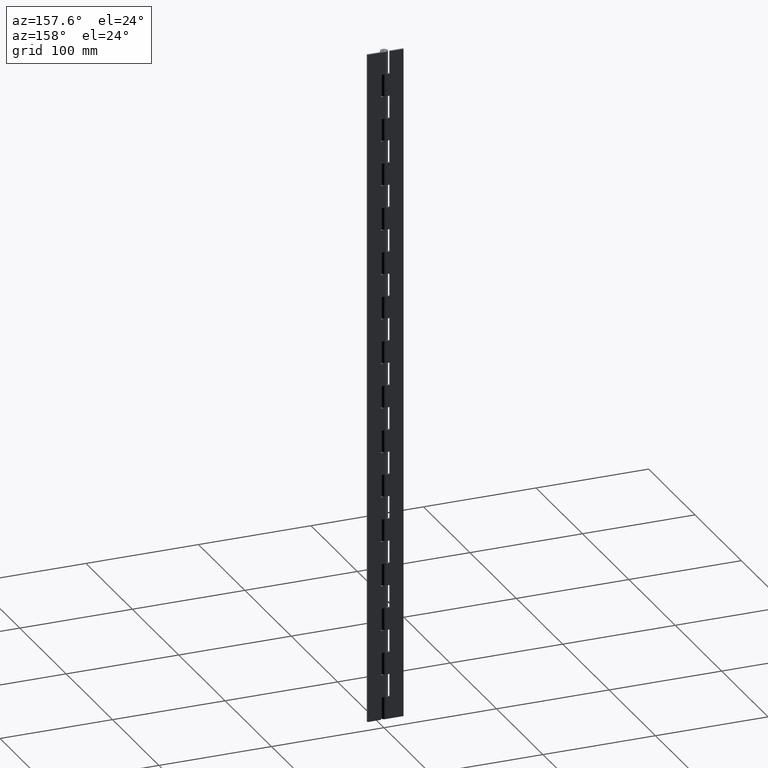
[diagram: clean part render]
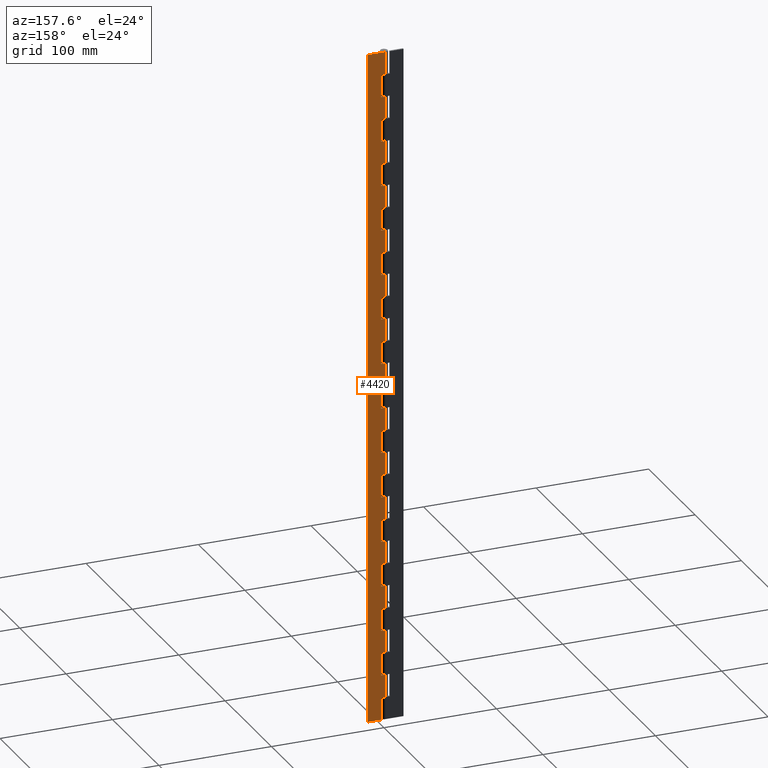
[diagram: same view with one face highlighted and labeled with its STEP entity id]
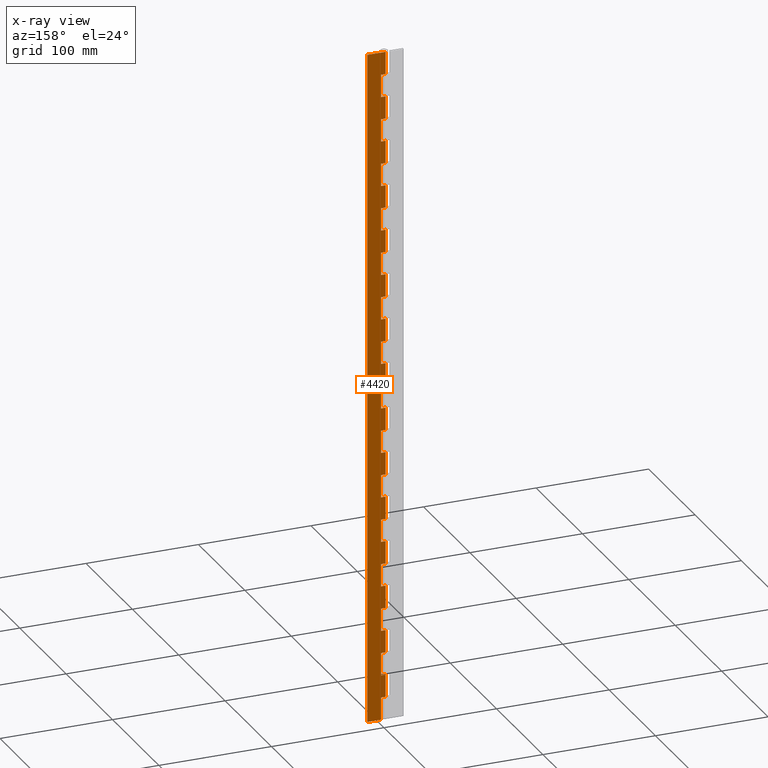
[diagram: x-ray of the same camera — body ghosted, the highlighted face saturated]
A machine part, auxiliary view. The second image highlights one B-rep face of the part: STEP entity #4420.
The next image is the same camera in x-ray: the body ghosted, the highlighted face saturated — about 0% of this face is hidden behind the body in this view.
In plain terms, the highlighted face is a freeform B-spline surface patch.
Its self-contained STEP definition (entity closure, byte-faithful):
#302=CARTESIAN_POINT('',(4.0,3.249999999999865,20.000021999999952));
#303=VERTEX_POINT('',#302);
#309=CARTESIAN_POINT('',(4.0,3.249999999999885,0.0));
#310=VERTEX_POINT('',#309);
#311=CARTESIAN_POINT('',(4.0,3.249999999999885,0.0));
#312=CARTESIAN_POINT('',(4.0,3.249999999999865,20.000021999999952));
#313=QUASI_UNIFORM_CURVE('',1,(#311,#312),.UNSPECIFIED.,.F.,.U.);
#314=EDGE_CURVE('',#310,#303,#313,.T.);
#366=CARTESIAN_POINT('',(0.0,3.249999999999865,20.000021999999952));
#367=VERTEX_POINT('',#366);
#387=CARTESIAN_POINT('',(4.0,3.249999999999865,20.000021999999952));
#388=CARTESIAN_POINT('',(0.0,3.249999999999865,20.000021999999952));
#389=QUASI_UNIFORM_CURVE('',1,(#387,#388),.UNSPECIFIED.,.F.,.U.);
#390=EDGE_CURVE('',#303,#367,#389,.T.);
#408=CARTESIAN_POINT('',(4.0,3.249999999999865,60.000022000000001));
#409=VERTEX_POINT('',#408);
#415=CARTESIAN_POINT('',(4.0,3.249999999999865,40.000022000000101));
#416=VERTEX_POINT('',#415);
#417=CARTESIAN_POINT('',(4.0,3.249999999999865,40.000022000000101));
#418=CARTESIAN_POINT('',(4.0,3.249999999999865,60.000022000000001));
#419=QUASI_UNIFORM_CURVE('',1,(#417,#418),.UNSPECIFIED.,.F.,.U.);
#420=EDGE_CURVE('',#416,#409,#419,.T.);
#472=CARTESIAN_POINT('',(0.0,3.249999999999865,60.000022000000001));
#473=VERTEX_POINT('',#472);
#493=CARTESIAN_POINT('',(4.0,3.249999999999865,60.000022000000001));
#494=CARTESIAN_POINT('',(0.0,3.249999999999865,60.000022000000001));
#495=QUASI_UNIFORM_CURVE('',1,(#493,#494),.UNSPECIFIED.,.F.,.U.);
#496=EDGE_CURVE('',#409,#473,#495,.T.);
#513=CARTESIAN_POINT('',(0.0,3.249999999999865,40.000022000000101));
#514=VERTEX_POINT('',#513);
#515=CARTESIAN_POINT('',(0.0,3.249999999999865,40.000022000000101));
#516=CARTESIAN_POINT('',(4.0,3.249999999999865,40.000022000000101));
#517=QUASI_UNIFORM_CURVE('',1,(#515,#516),.UNSPECIFIED.,.F.,.U.);
#518=EDGE_CURVE('',#514,#416,#517,.T.);
#584=CARTESIAN_POINT('',(4.0,3.249999999999865,100.000022000000000));
#585=VERTEX_POINT('',#584);
#591=CARTESIAN_POINT('',(4.0,3.249999999999865,80.000022000000101));
#592=VERTEX_POINT('',#591);
#593=CARTESIAN_POINT('',(4.0,3.249999999999865,80.000022000000101));
#594=CARTESIAN_POINT('',(4.0,3.249999999999865,100.000022000000000));
#595=QUASI_UNIFORM_CURVE('',1,(#593,#594),.UNSPECIFIED.,.F.,.U.);
#596=EDGE_CURVE('',#592,#585,#595,.T.);
#648=CARTESIAN_POINT('',(0.0,3.249999999999865,100.000022000000000));
#649=VERTEX_POINT('',#648);
#669=CARTESIAN_POINT('',(4.0,3.249999999999865,100.000022000000000));
#670=CARTESIAN_POINT('',(0.0,3.249999999999865,100.000022000000000));
#671=QUASI_UNIFORM_CURVE('',1,(#669,#670),.UNSPECIFIED.,.F.,.U.);
#672=EDGE_CURVE('',#585,#649,#671,.T.);
#689=CARTESIAN_POINT('',(0.0,3.249999999999865,80.000022000000101));
#690=VERTEX_POINT('',#689);
#691=CARTESIAN_POINT('',(0.0,3.249999999999865,80.000022000000101));
#692=CARTESIAN_POINT('',(4.0,3.249999999999865,80.000022000000101));
#693=QUASI_UNIFORM_CURVE('',1,(#691,#692),.UNSPECIFIED.,.F.,.U.);
#694=EDGE_CURVE('',#690,#592,#693,.T.);
#760=CARTESIAN_POINT('',(4.0,3.249999999999865,140.000022000000000));
#761=VERTEX_POINT('',#760);
#767=CARTESIAN_POINT('',(4.0,3.249999999999865,120.000022000000000));
#768=VERTEX_POINT('',#767);
#769=CARTESIAN_POINT('',(4.0,3.249999999999865,120.000022000000000));
#770=CARTESIAN_POINT('',(4.0,3.249999999999865,140.000022000000000));
#771=QUASI_UNIFORM_CURVE('',1,(#769,#770),.UNSPECIFIED.,.F.,.U.);
#772=EDGE_CURVE('',#768,#761,#771,.T.);
#824=CARTESIAN_POINT('',(0.0,3.249999999999865,140.000022000000000));
#825=VERTEX_POINT('',#824);
#845=CARTESIAN_POINT('',(4.0,3.249999999999865,140.000022000000000));
#846=CARTESIAN_POINT('',(0.0,3.249999999999865,140.000022000000000));
#847=QUASI_UNIFORM_CURVE('',1,(#845,#846),.UNSPECIFIED.,.F.,.U.);
#848=EDGE_CURVE('',#761,#825,#847,.T.);
#865=CARTESIAN_POINT('',(0.0,3.249999999999865,120.000022000000000));
#866=VERTEX_POINT('',#865);
#867=CARTESIAN_POINT('',(0.0,3.249999999999865,120.000022000000000));
#868=CARTESIAN_POINT('',(4.0,3.249999999999865,120.000022000000000));
#869=QUASI_UNIFORM_CURVE('',1,(#867,#868),.UNSPECIFIED.,.F.,.U.);
#870=EDGE_CURVE('',#866,#768,#869,.T.);
#936=CARTESIAN_POINT('',(4.0,3.249999999999865,180.000022000000000));
#937=VERTEX_POINT('',#936);
#943=CARTESIAN_POINT('',(4.0,3.249999999999865,160.000022000000000));
#944=VERTEX_POINT('',#943);
#945=CARTESIAN_POINT('',(4.0,3.249999999999865,160.000022000000000));
#946=CARTESIAN_POINT('',(4.0,3.249999999999865,180.000022000000000));
#947=QUASI_UNIFORM_CURVE('',1,(#945,#946),.UNSPECIFIED.,.F.,.U.);
#948=EDGE_CURVE('',#944,#937,#947,.T.);
#1000=CARTESIAN_POINT('',(0.0,3.249999999999865,180.000022000000000));
#1001=VERTEX_POINT('',#1000);
#1021=CARTESIAN_POINT('',(4.0,3.249999999999865,180.000022000000000));
#1022=CARTESIAN_POINT('',(0.0,3.249999999999865,180.000022000000000));
#1023=QUASI_UNIFORM_CURVE('',1,(#1021,#1022),.UNSPECIFIED.,.F.,.U.);
#1024=EDGE_CURVE('',#937,#1001,#1023,.T.);
#1041=CARTESIAN_POINT('',(0.0,3.249999999999865,160.000022000000000));
#1042=VERTEX_POINT('',#1041);
#1043=CARTESIAN_POINT('',(0.0,3.249999999999865,160.000022000000000));
#1044=CARTESIAN_POINT('',(4.0,3.249999999999865,160.000022000000000));
#1045=QUASI_UNIFORM_CURVE('',1,(#1043,#1044),.UNSPECIFIED.,.F.,.U.);
#1046=EDGE_CURVE('',#1042,#944,#1045,.T.);
#1112=CARTESIAN_POINT('',(4.0,3.249999999999865,220.000022000000000));
#1113=VERTEX_POINT('',#1112);
#1119=CARTESIAN_POINT('',(4.0,3.249999999999865,200.000022000000000));
#1120=VERTEX_POINT('',#1119);
#1121=CARTESIAN_POINT('',(4.0,3.249999999999865,200.000022000000000));
#1122=CARTESIAN_POINT('',(4.0,3.249999999999865,220.000022000000000));
#1123=QUASI_UNIFORM_CURVE('',1,(#1121,#1122),.UNSPECIFIED.,.F.,.U.);
#1124=EDGE_CURVE('',#1120,#1113,#1123,.T.);
#1176=CARTESIAN_POINT('',(0.0,3.249999999999865,220.000022000000000));
#1177=VERTEX_POINT('',#1176);
#1197=CARTESIAN_POINT('',(4.0,3.249999999999865,220.000022000000000));
#1198=CARTESIAN_POINT('',(0.0,3.249999999999865,220.000022000000000));
#1199=QUASI_UNIFORM_CURVE('',1,(#1197,#1198),.UNSPECIFIED.,.F.,.U.);
#1200=EDGE_CURVE('',#1113,#1177,#1199,.T.);
#1217=CARTESIAN_POINT('',(0.0,3.249999999999865,200.000022000000000));
#1218=VERTEX_POINT('',#1217);
#1219=CARTESIAN_POINT('',(0.0,3.249999999999865,200.000022000000000));
#1220=CARTESIAN_POINT('',(4.0,3.249999999999865,200.000022000000000));
#1221=QUASI_UNIFORM_CURVE('',1,(#1219,#1220),.UNSPECIFIED.,.F.,.U.);
#1222=EDGE_CURVE('',#1218,#1120,#1221,.T.);
#1288=CARTESIAN_POINT('',(4.0,3.249999999999865,260.000022000000000));
#1289=VERTEX_POINT('',#1288);
#1295=CARTESIAN_POINT('',(4.0,3.249999999999865,240.000022000000000));
#1296=VERTEX_POINT('',#1295);
#1297=CARTESIAN_POINT('',(4.0,3.249999999999865,240.000022000000000));
#1298=CARTESIAN_POINT('',(4.0,3.249999999999865,260.000022000000000));
#1299=QUASI_UNIFORM_CURVE('',1,(#1297,#1298),.UNSPECIFIED.,.F.,.U.);
#1300=EDGE_CURVE('',#1296,#1289,#1299,.T.);
#1352=CARTESIAN_POINT('',(0.0,3.249999999999865,260.000022000000000));
#1353=VERTEX_POINT('',#1352);
#1373=CARTESIAN_POINT('',(4.0,3.249999999999865,260.000022000000000));
#1374=CARTESIAN_POINT('',(0.0,3.249999999999865,260.000022000000000));
#1375=QUASI_UNIFORM_CURVE('',1,(#1373,#1374),.UNSPECIFIED.,.F.,.U.);
#1376=EDGE_CURVE('',#1289,#1353,#1375,.T.);
#1393=CARTESIAN_POINT('',(0.0,3.249999999999865,240.000022000000000));
#1394=VERTEX_POINT('',#1393);
#1395=CARTESIAN_POINT('',(0.0,3.249999999999865,240.000022000000000));
#1396=CARTESIAN_POINT('',(4.0,3.249999999999865,240.000022000000000));
#1397=QUASI_UNIFORM_CURVE('',1,(#1395,#1396),.UNSPECIFIED.,.F.,.U.);
#1398=EDGE_CURVE('',#1394,#1296,#1397,.T.);
#1464=CARTESIAN_POINT('',(4.0,3.249999999999865,300.000022000000000));
#1465=VERTEX_POINT('',#1464);
#1471=CARTESIAN_POINT('',(4.0,3.249999999999865,280.000022000000000));
#1472=VERTEX_POINT('',#1471);
#1473=CARTESIAN_POINT('',(4.0,3.249999999999865,280.000022000000000));
#1474=CARTESIAN_POINT('',(4.0,3.249999999999865,300.000022000000000));
#1475=QUASI_UNIFORM_CURVE('',1,(#1473,#1474),.UNSPECIFIED.,.F.,.U.);
#1476=EDGE_CURVE('',#1472,#1465,#1475,.T.);
#1528=CARTESIAN_POINT('',(0.0,3.249999999999865,300.000022000000000));
#1529=VERTEX_POINT('',#1528);
#1549=CARTESIAN_POINT('',(4.0,3.249999999999865,300.000022000000000));
#1550=CARTESIAN_POINT('',(0.0,3.249999999999865,300.000022000000000));
#1551=QUASI_UNIFORM_CURVE('',1,(#1549,#1550),.UNSPECIFIED.,.F.,.U.);
#1552=EDGE_CURVE('',#1465,#1529,#1551,.T.);
#1569=CARTESIAN_POINT('',(0.0,3.249999999999865,280.000022000000000));
#1570=VERTEX_POINT('',#1569);
#1571=CARTESIAN_POINT('',(0.0,3.249999999999865,280.000022000000000));
#1572=CARTESIAN_POINT('',(4.0,3.249999999999865,280.000022000000000));
#1573=QUASI_UNIFORM_CURVE('',1,(#1571,#1572),.UNSPECIFIED.,.F.,.U.);
#1574=EDGE_CURVE('',#1570,#1472,#1573,.T.);
#1640=CARTESIAN_POINT('',(4.0,3.249999999999865,340.000022000000000));
#1641=VERTEX_POINT('',#1640);
#1647=CARTESIAN_POINT('',(4.0,3.249999999999865,320.000022000000000));
#1648=VERTEX_POINT('',#1647);
#1649=CARTESIAN_POINT('',(4.0,3.249999999999865,320.000022000000000));
#1650=CARTESIAN_POINT('',(4.0,3.249999999999865,340.000022000000000));
#1651=QUASI_UNIFORM_CURVE('',1,(#1649,#1650),.UNSPECIFIED.,.F.,.U.);
#1652=EDGE_CURVE('',#1648,#1641,#1651,.T.);
#1704=CARTESIAN_POINT('',(0.0,3.249999999999865,340.000022000000000));
#1705=VERTEX_POINT('',#1704);
#1725=CARTESIAN_POINT('',(4.0,3.249999999999865,340.000022000000000));
#1726=CARTESIAN_POINT('',(0.0,3.249999999999865,340.000022000000000));
#1727=QUASI_UNIFORM_CURVE('',1,(#1725,#1726),.UNSPECIFIED.,.F.,.U.);
#1728=EDGE_CURVE('',#1641,#1705,#1727,.T.);
#1745=CARTESIAN_POINT('',(0.0,3.249999999999865,320.000022000000000));
#1746=VERTEX_POINT('',#1745);
#1747=CARTESIAN_POINT('',(0.0,3.249999999999865,320.000022000000000));
#1748=CARTESIAN_POINT('',(4.0,3.249999999999865,320.000022000000000));
#1749=QUASI_UNIFORM_CURVE('',1,(#1747,#1748),.UNSPECIFIED.,.F.,.U.);
#1750=EDGE_CURVE('',#1746,#1648,#1749,.T.);
#1816=CARTESIAN_POINT('',(4.0,3.249999999999865,380.000022000000000));
#1817=VERTEX_POINT('',#1816);
#1823=CARTESIAN_POINT('',(4.0,3.249999999999865,360.000022000000000));
#1824=VERTEX_POINT('',#1823);
#1825=CARTESIAN_POINT('',(4.0,3.249999999999865,360.000022000000000));
#1826=CARTESIAN_POINT('',(4.0,3.249999999999865,380.000022000000000));
#1827=QUASI_UNIFORM_CURVE('',1,(#1825,#1826),.UNSPECIFIED.,.F.,.U.);
#1828=EDGE_CURVE('',#1824,#1817,#1827,.T.);
#1880=CARTESIAN_POINT('',(0.0,3.249999999999865,380.000022000000000));
#1881=VERTEX_POINT('',#1880);
#1901=CARTESIAN_POINT('',(4.0,3.249999999999865,380.000022000000000));
#1902=CARTESIAN_POINT('',(0.0,3.249999999999865,380.000022000000000));
#1903=QUASI_UNIFORM_CURVE('',1,(#1901,#1902),.UNSPECIFIED.,.F.,.U.);
#1904=EDGE_CURVE('',#1817,#1881,#1903,.T.);
#1921=CARTESIAN_POINT('',(0.0,3.249999999999865,360.000022000000000));
#1922=VERTEX_POINT('',#1921);
#1923=CARTESIAN_POINT('',(0.0,3.249999999999865,360.000022000000000));
#1924=CARTESIAN_POINT('',(4.0,3.249999999999865,360.000022000000000));
#1925=QUASI_UNIFORM_CURVE('',1,(#1923,#1924),.UNSPECIFIED.,.F.,.U.);
#1926=EDGE_CURVE('',#1922,#1824,#1925,.T.);
#1992=CARTESIAN_POINT('',(4.0,3.249999999999865,420.000021999999890));
#1993=VERTEX_POINT('',#1992);
#1999=CARTESIAN_POINT('',(4.0,3.249999999999865,400.000022000000000));
#2000=VERTEX_POINT('',#1999);
#2001=CARTESIAN_POINT('',(4.0,3.249999999999865,400.000022000000000));
#2002=CARTESIAN_POINT('',(4.0,3.249999999999865,420.000021999999890));
#2003=QUASI_UNIFORM_CURVE('',1,(#2001,#2002),.UNSPECIFIED.,.F.,.U.);
#2004=EDGE_CURVE('',#2000,#1993,#2003,.T.);
#2056=CARTESIAN_POINT('',(0.0,3.249999999999865,420.000021999999890));
#2057=VERTEX_POINT('',#2056);
#2077=CARTESIAN_POINT('',(4.0,3.249999999999865,420.000021999999890));
#2078=CARTESIAN_POINT('',(0.0,3.249999999999865,420.000021999999890));
#2079=QUASI_UNIFORM_CURVE('',1,(#2077,#2078),.UNSPECIFIED.,.F.,.U.);
#2080=EDGE_CURVE('',#1993,#2057,#2079,.T.);
#2097=CARTESIAN_POINT('',(0.0,3.249999999999865,400.000022000000000));
#2098=VERTEX_POINT('',#2097);
#2099=CARTESIAN_POINT('',(0.0,3.249999999999865,400.000022000000000));
#2100=CARTESIAN_POINT('',(4.0,3.249999999999865,400.000022000000000));
#2101=QUASI_UNIFORM_CURVE('',1,(#2099,#2100),.UNSPECIFIED.,.F.,.U.);
#2102=EDGE_CURVE('',#2098,#2000,#2101,.T.);
#2168=CARTESIAN_POINT('',(4.0,3.249999999999865,460.000022000000000));
#2169=VERTEX_POINT('',#2168);
#2175=CARTESIAN_POINT('',(4.0,3.249999999999865,440.000022000000000));
#2176=VERTEX_POINT('',#2175);
#2177=CARTESIAN_POINT('',(4.0,3.249999999999865,440.000022000000000));
#2178=CARTESIAN_POINT('',(4.0,3.249999999999865,460.000022000000000));
#2179=QUASI_UNIFORM_CURVE('',1,(#2177,#2178),.UNSPECIFIED.,.F.,.U.);
#2180=EDGE_CURVE('',#2176,#2169,#2179,.T.);
#2232=CARTESIAN_POINT('',(0.0,3.249999999999865,460.000022000000000));
#2233=VERTEX_POINT('',#2232);
#2253=CARTESIAN_POINT('',(4.0,3.249999999999865,460.000022000000000));
#2254=CARTESIAN_POINT('',(0.0,3.249999999999865,460.000022000000000));
#2255=QUASI_UNIFORM_CURVE('',1,(#2253,#2254),.UNSPECIFIED.,.F.,.U.);
#2256=EDGE_CURVE('',#2169,#2233,#2255,.T.);
#2273=CARTESIAN_POINT('',(0.0,3.249999999999865,440.000022000000000));
#2274=VERTEX_POINT('',#2273);
#2275=CARTESIAN_POINT('',(0.0,3.249999999999865,440.000022000000000));
#2276=CARTESIAN_POINT('',(4.0,3.249999999999865,440.000022000000000));
#2277=QUASI_UNIFORM_CURVE('',1,(#2275,#2276),.UNSPECIFIED.,.F.,.U.);
#2278=EDGE_CURVE('',#2274,#2176,#2277,.T.);
#2344=CARTESIAN_POINT('',(4.0,3.249999999999865,500.000022000000110));
#2345=VERTEX_POINT('',#2344);
#2351=CARTESIAN_POINT('',(4.0,3.249999999999865,480.000022000000000));
#2352=VERTEX_POINT('',#2351);
#2353=CARTESIAN_POINT('',(4.0,3.249999999999865,480.000022000000000));
#2354=CARTESIAN_POINT('',(4.0,3.249999999999865,500.000022000000110));
#2355=QUASI_UNIFORM_CURVE('',1,(#2353,#2354),.UNSPECIFIED.,.F.,.U.);
#2356=EDGE_CURVE('',#2352,#2345,#2355,.T.);
#2408=CARTESIAN_POINT('',(0.0,3.249999999999865,500.000022000000110));
#2409=VERTEX_POINT('',#2408);
#2429=CARTESIAN_POINT('',(4.0,3.249999999999865,500.000022000000110));
#2430=CARTESIAN_POINT('',(0.0,3.249999999999865,500.000022000000110));
#2431=QUASI_UNIFORM_CURVE('',1,(#2429,#2430),.UNSPECIFIED.,.F.,.U.);
#2432=EDGE_CURVE('',#2345,#2409,#2431,.T.);
#2449=CARTESIAN_POINT('',(0.0,3.249999999999865,480.000022000000000));
#2450=VERTEX_POINT('',#2449);
#2451=CARTESIAN_POINT('',(0.0,3.249999999999865,480.000022000000000));
#2452=CARTESIAN_POINT('',(4.0,3.249999999999865,480.000022000000000));
#2453=QUASI_UNIFORM_CURVE('',1,(#2451,#2452),.UNSPECIFIED.,.F.,.U.);
#2454=EDGE_CURVE('',#2450,#2352,#2453,.T.);
#2520=CARTESIAN_POINT('',(4.0,3.249999999999865,540.000021999999940));
#2521=VERTEX_POINT('',#2520);
#2527=CARTESIAN_POINT('',(4.0,3.249999999999865,520.000021999999940));
#2528=VERTEX_POINT('',#2527);
#2529=CARTESIAN_POINT('',(4.0,3.249999999999865,520.000021999999940));
#2530=CARTESIAN_POINT('',(4.0,3.249999999999865,540.000021999999940));
#2531=QUASI_UNIFORM_CURVE('',1,(#2529,#2530),.UNSPECIFIED.,.F.,.U.);
#2532=EDGE_CURVE('',#2528,#2521,#2531,.T.);
#2584=CARTESIAN_POINT('',(0.0,3.249999999999865,540.000021999999940));
#2585=VERTEX_POINT('',#2584);
#2605=CARTESIAN_POINT('',(4.0,3.249999999999865,540.000021999999940));
#2606=CARTESIAN_POINT('',(0.0,3.249999999999865,540.000021999999940));
#2607=QUASI_UNIFORM_CURVE('',1,(#2605,#2606),.UNSPECIFIED.,.F.,.U.);
#2608=EDGE_CURVE('',#2521,#2585,#2607,.T.);
#2625=CARTESIAN_POINT('',(0.0,3.249999999999865,520.000021999999940));
#2626=VERTEX_POINT('',#2625);
#2627=CARTESIAN_POINT('',(0.0,3.249999999999865,520.000021999999940));
#2628=CARTESIAN_POINT('',(4.0,3.249999999999865,520.000021999999940));
#2629=QUASI_UNIFORM_CURVE('',1,(#2627,#2628),.UNSPECIFIED.,.F.,.U.);
#2630=EDGE_CURVE('',#2626,#2528,#2629,.T.);
#2696=CARTESIAN_POINT('',(4.0,3.249999999999865,580.000022000000060));
#2697=VERTEX_POINT('',#2696);
#2703=CARTESIAN_POINT('',(4.0,3.249999999999865,560.000021999999940));
#2704=VERTEX_POINT('',#2703);
#2705=CARTESIAN_POINT('',(4.0,3.249999999999865,560.000021999999940));
#2706=CARTESIAN_POINT('',(4.0,3.249999999999865,580.000022000000060));
#2707=QUASI_UNIFORM_CURVE('',1,(#2705,#2706),.UNSPECIFIED.,.F.,.U.);
#2708=EDGE_CURVE('',#2704,#2697,#2707,.T.);
#2760=CARTESIAN_POINT('',(0.0,3.249999999999865,580.000022000000060));
#2761=VERTEX_POINT('',#2760);
#2781=CARTESIAN_POINT('',(4.0,3.249999999999865,580.000022000000060));
#2782=CARTESIAN_POINT('',(0.0,3.249999999999865,580.000022000000060));
#2783=QUASI_UNIFORM_CURVE('',1,(#2781,#2782),.UNSPECIFIED.,.F.,.U.);
#2784=EDGE_CURVE('',#2697,#2761,#2783,.T.);
#2801=CARTESIAN_POINT('',(0.0,3.249999999999865,560.000021999999940));
#2802=VERTEX_POINT('',#2801);
#2803=CARTESIAN_POINT('',(0.0,3.249999999999865,560.000021999999940));
#2804=CARTESIAN_POINT('',(4.0,3.249999999999865,560.000021999999940));
#2805=QUASI_UNIFORM_CURVE('',1,(#2803,#2804),.UNSPECIFIED.,.F.,.U.);
#2806=EDGE_CURVE('',#2802,#2704,#2805,.T.);
#2870=CARTESIAN_POINT('',(-5.969956E-016,3.250000000000000,600.000022000000060));
#2871=VERTEX_POINT('',#2870);
#2872=CARTESIAN_POINT('',(16.0,3.249999999999885,600.000022000000060));
#2873=VERTEX_POINT('',#2872);
#2874=CARTESIAN_POINT('',(-5.969956E-016,3.250000000000000,600.000022000000060));
#2875=CARTESIAN_POINT('',(16.0,3.249999999999885,600.000022000000060));
#2876=QUASI_UNIFORM_CURVE('',1,(#2874,#2875),.UNSPECIFIED.,.F.,.U.);
#2877=EDGE_CURVE('',#2871,#2873,#2876,.T.);
#2948=CARTESIAN_POINT('',(16.0,3.249999999999885,0.0));
#2949=VERTEX_POINT('',#2948);
#2957=CARTESIAN_POINT('',(16.0,3.249999999999885,600.000022000000060));
#2958=CARTESIAN_POINT('',(16.0,3.249999999999885,0.0));
#2959=QUASI_UNIFORM_CURVE('',1,(#2957,#2958),.UNSPECIFIED.,.F.,.U.);
#2960=EDGE_CURVE('',#2873,#2949,#2959,.T.);
#3000=CARTESIAN_POINT('',(-5.969956E-016,3.250000000000000,600.000022000000060));
#3001=CARTESIAN_POINT('',(0.0,3.249999999999865,580.000022000000060));
#3002=QUASI_UNIFORM_CURVE('',1,(#3000,#3001),.UNSPECIFIED.,.F.,.U.);
#3003=EDGE_CURVE('',#2871,#2761,#3002,.T.);
#3086=CARTESIAN_POINT('',(0.0,3.249999999999865,560.000021999999940));
#3087=CARTESIAN_POINT('',(0.0,3.249999999999865,540.000021999999940));
#3088=QUASI_UNIFORM_CURVE('',1,(#3086,#3087),.UNSPECIFIED.,.F.,.U.);
#3089=EDGE_CURVE('',#2802,#2585,#3088,.T.);
#3172=CARTESIAN_POINT('',(0.0,3.249999999999865,520.000021999999940));
#3173=CARTESIAN_POINT('',(0.0,3.249999999999865,500.000022000000110));
#3174=QUASI_UNIFORM_CURVE('',1,(#3172,#3173),.UNSPECIFIED.,.F.,.U.);
#3175=EDGE_CURVE('',#2626,#2409,#3174,.T.);
#3258=CARTESIAN_POINT('',(0.0,3.249999999999865,480.000022000000000));
#3259=CARTESIAN_POINT('',(0.0,3.249999999999865,460.000022000000000));
#3260=QUASI_UNIFORM_CURVE('',1,(#3258,#3259),.UNSPECIFIED.,.F.,.U.);
#3261=EDGE_CURVE('',#2450,#2233,#3260,.T.);
#3344=CARTESIAN_POINT('',(0.0,3.249999999999865,440.000022000000000));
#3345=CARTESIAN_POINT('',(0.0,3.249999999999865,420.000021999999890));
#3346=QUASI_UNIFORM_CURVE('',1,(#3344,#3345),.UNSPECIFIED.,.F.,.U.);
#3347=EDGE_CURVE('',#2274,#2057,#3346,.T.);
#3430=CARTESIAN_POINT('',(0.0,3.249999999999865,400.000022000000000));
#3431=CARTESIAN_POINT('',(0.0,3.249999999999865,380.000022000000000));
#3432=QUASI_UNIFORM_CURVE('',1,(#3430,#3431),.UNSPECIFIED.,.F.,.U.);
#3433=EDGE_CURVE('',#2098,#1881,#3432,.T.);
#3516=CARTESIAN_POINT('',(0.0,3.249999999999865,360.000022000000000));
#3517=CARTESIAN_POINT('',(0.0,3.249999999999865,340.000022000000000));
#3518=QUASI_UNIFORM_CURVE('',1,(#3516,#3517),.UNSPECIFIED.,.F.,.U.);
#3519=EDGE_CURVE('',#1922,#1705,#3518,.T.);
#3602=CARTESIAN_POINT('',(0.0,3.249999999999865,320.000022000000000));
#3603=CARTESIAN_POINT('',(0.0,3.249999999999865,300.000022000000000));
#3604=QUASI_UNIFORM_CURVE('',1,(#3602,#3603),.UNSPECIFIED.,.F.,.U.);
#3605=EDGE_CURVE('',#1746,#1529,#3604,.T.);
#3688=CARTESIAN_POINT('',(0.0,3.249999999999865,280.000022000000000));
#3689=CARTESIAN_POINT('',(0.0,3.249999999999865,260.000022000000000));
#3690=QUASI_UNIFORM_CURVE('',1,(#3688,#3689),.UNSPECIFIED.,.F.,.U.);
#3691=EDGE_CURVE('',#1570,#1353,#3690,.T.);
#3774=CARTESIAN_POINT('',(0.0,3.249999999999865,240.000022000000000));
#3775=CARTESIAN_POINT('',(0.0,3.249999999999865,220.000022000000000));
#3776=QUASI_UNIFORM_CURVE('',1,(#3774,#3775),.UNSPECIFIED.,.F.,.U.);
#3777=EDGE_CURVE('',#1394,#1177,#3776,.T.);
#3860=CARTESIAN_POINT('',(0.0,3.249999999999865,200.000022000000000));
#3861=CARTESIAN_POINT('',(0.0,3.249999999999865,180.000022000000000));
#3862=QUASI_UNIFORM_CURVE('',1,(#3860,#3861),.UNSPECIFIED.,.F.,.U.);
#3863=EDGE_CURVE('',#1218,#1001,#3862,.T.);
#3946=CARTESIAN_POINT('',(0.0,3.249999999999865,160.000022000000000));
#3947=CARTESIAN_POINT('',(0.0,3.249999999999865,140.000022000000000));
#3948=QUASI_UNIFORM_CURVE('',1,(#3946,#3947),.UNSPECIFIED.,.F.,.U.);
#3949=EDGE_CURVE('',#1042,#825,#3948,.T.);
#4032=CARTESIAN_POINT('',(0.0,3.249999999999865,120.000022000000000));
#4033=CARTESIAN_POINT('',(0.0,3.249999999999865,100.000022000000000));
#4034=QUASI_UNIFORM_CURVE('',1,(#4032,#4033),.UNSPECIFIED.,.F.,.U.);
#4035=EDGE_CURVE('',#866,#649,#4034,.T.);
#4118=CARTESIAN_POINT('',(0.0,3.249999999999865,80.000022000000101));
#4119=CARTESIAN_POINT('',(0.0,3.249999999999865,60.000022000000001));
#4120=QUASI_UNIFORM_CURVE('',1,(#4118,#4119),.UNSPECIFIED.,.F.,.U.);
#4121=EDGE_CURVE('',#690,#473,#4120,.T.);
#4181=CARTESIAN_POINT('',(4.0,3.249999999999885,0.0));
#4182=CARTESIAN_POINT('',(16.0,3.249999999999885,0.0));
#4183=QUASI_UNIFORM_CURVE('',1,(#4181,#4182),.UNSPECIFIED.,.F.,.U.);
#4184=EDGE_CURVE('',#310,#2949,#4183,.T.);
#4224=CARTESIAN_POINT('',(0.0,3.249999999999865,40.000022000000101));
#4225=CARTESIAN_POINT('',(0.0,3.249999999999865,20.000021999999952));
#4226=QUASI_UNIFORM_CURVE('',1,(#4224,#4225),.UNSPECIFIED.,.F.,.U.);
#4227=EDGE_CURVE('',#514,#367,#4226,.T.);
#4351=CARTESIAN_POINT('',(-0.799199968988895,3.249999999999885,-29.969997792362008));
#4352=CARTESIAN_POINT('',(-0.799199968988895,3.249999999999885,629.969992970271050));
#4353=CARTESIAN_POINT('',(16.799200398142339,3.249999999999885,-29.969997792362008));
#4354=CARTESIAN_POINT('',(16.799200398142339,3.249999999999885,629.969992970271050));
#4355=B_SPLINE_SURFACE_WITH_KNOTS('',1,1,((#4351,#4353),(#4352,#4354)),.UNSPECIFIED.,.F.,.F.,.U.,(2,2),(2,2),(0.0,659.939990762633100),(0.0,17.598400367131230),.UNSPECIFIED.);
#4356=ORIENTED_EDGE('',*,*,#4184,.F.);
#4357=ORIENTED_EDGE('',*,*,#314,.T.);
#4358=ORIENTED_EDGE('',*,*,#390,.T.);
#4359=ORIENTED_EDGE('',*,*,#4227,.F.);
#4360=ORIENTED_EDGE('',*,*,#518,.T.);
#4361=ORIENTED_EDGE('',*,*,#420,.T.);
#4362=ORIENTED_EDGE('',*,*,#496,.T.);
#4363=ORIENTED_EDGE('',*,*,#4121,.F.);
#4364=ORIENTED_EDGE('',*,*,#694,.T.);
#4365=ORIENTED_EDGE('',*,*,#596,.T.);
#4366=ORIENTED_EDGE('',*,*,#672,.T.);
#4367=ORIENTED_EDGE('',*,*,#4035,.F.);
#4368=ORIENTED_EDGE('',*,*,#870,.T.);
#4369=ORIENTED_EDGE('',*,*,#772,.T.);
#4370=ORIENTED_EDGE('',*,*,#848,.T.);
#4371=ORIENTED_EDGE('',*,*,#3949,.F.);
#4372=ORIENTED_EDGE('',*,*,#1046,.T.);
#4373=ORIENTED_EDGE('',*,*,#948,.T.);
#4374=ORIENTED_EDGE('',*,*,#1024,.T.);
#4375=ORIENTED_EDGE('',*,*,#3863,.F.);
#4376=ORIENTED_EDGE('',*,*,#1222,.T.);
#4377=ORIENTED_EDGE('',*,*,#1124,.T.);
#4378=ORIENTED_EDGE('',*,*,#1200,.T.);
#4379=ORIENTED_EDGE('',*,*,#3777,.F.);
#4380=ORIENTED_EDGE('',*,*,#1398,.T.);
#4381=ORIENTED_EDGE('',*,*,#1300,.T.);
#4382=ORIENTED_EDGE('',*,*,#1376,.T.);
#4383=ORIENTED_EDGE('',*,*,#3691,.F.);
#4384=ORIENTED_EDGE('',*,*,#1574,.T.);
#4385=ORIENTED_EDGE('',*,*,#1476,.T.);
#4386=ORIENTED_EDGE('',*,*,#1552,.T.);
#4387=ORIENTED_EDGE('',*,*,#3605,.F.);
#4388=ORIENTED_EDGE('',*,*,#1750,.T.);
#4389=ORIENTED_EDGE('',*,*,#1652,.T.);
#4390=ORIENTED_EDGE('',*,*,#1728,.T.);
#4391=ORIENTED_EDGE('',*,*,#3519,.F.);
#4392=ORIENTED_EDGE('',*,*,#1926,.T.);
#4393=ORIENTED_EDGE('',*,*,#1828,.T.);
#4394=ORIENTED_EDGE('',*,*,#1904,.T.);
#4395=ORIENTED_EDGE('',*,*,#3433,.F.);
#4396=ORIENTED_EDGE('',*,*,#2102,.T.);
#4397=ORIENTED_EDGE('',*,*,#2004,.T.);
#4398=ORIENTED_EDGE('',*,*,#2080,.T.);
#4399=ORIENTED_EDGE('',*,*,#3347,.F.);
#4400=ORIENTED_EDGE('',*,*,#2278,.T.);
#4401=ORIENTED_EDGE('',*,*,#2180,.T.);
#4402=ORIENTED_EDGE('',*,*,#2256,.T.);
#4403=ORIENTED_EDGE('',*,*,#3261,.F.);
#4404=ORIENTED_EDGE('',*,*,#2454,.T.);
#4405=ORIENTED_EDGE('',*,*,#2356,.T.);
#4406=ORIENTED_EDGE('',*,*,#2432,.T.);
#4407=ORIENTED_EDGE('',*,*,#3175,.F.);
#4408=ORIENTED_EDGE('',*,*,#2630,.T.);
#4409=ORIENTED_EDGE('',*,*,#2532,.T.);
#4410=ORIENTED_EDGE('',*,*,#2608,.T.);
#4411=ORIENTED_EDGE('',*,*,#3089,.F.);
#4412=ORIENTED_EDGE('',*,*,#2806,.T.);
#4413=ORIENTED_EDGE('',*,*,#2708,.T.);
#4414=ORIENTED_EDGE('',*,*,#2784,.T.);
#4415=ORIENTED_EDGE('',*,*,#3003,.F.);
#4416=ORIENTED_EDGE('',*,*,#2877,.T.);
#4417=ORIENTED_EDGE('',*,*,#2960,.T.);
#4418=EDGE_LOOP('',(#4356,#4357,#4358,#4359,#4360,#4361,#4362,#4363,#4364,#4365,#4366,#4367,#4368,#4369,#4370,#4371,#4372,#4373,#4374,#4375,#4376,#4377,#4378,#4379,#4380,#4381,#4382,#4383,#4384,#4385,#4386,#4387,#4388,#4389,#4390,#4391,#4392,#4393,#4394,#4395,#4396,#4397,#4398,#4399,#4400,#4401,#4402,#4403,#4404,#4405,#4406,#4407,#4408,#4409,#4410,#4411,#4412,#4413,#4414,#4415,#4416,#4417));
#4419=FACE_OUTER_BOUND('',#4418,.T.);
#4420=ADVANCED_FACE('',(#4419),#4355,.T.);